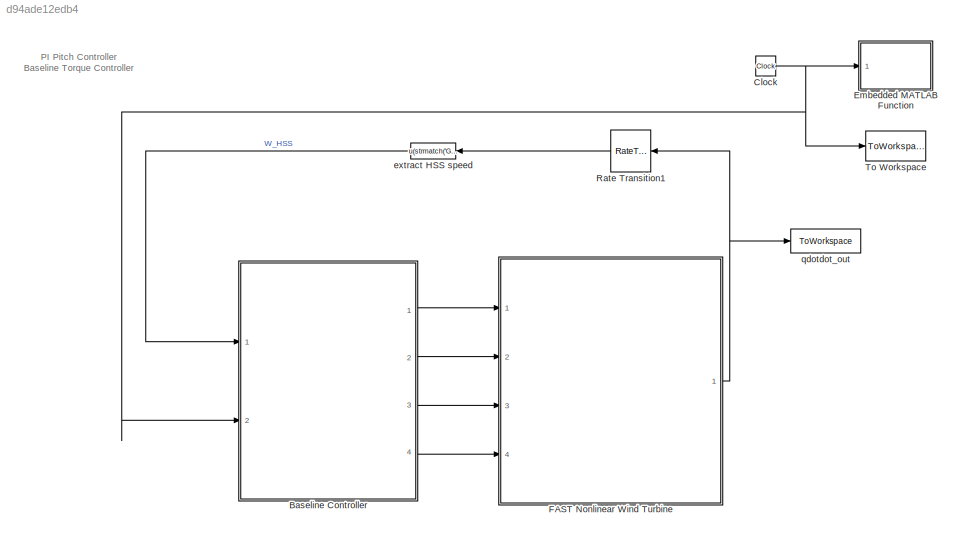
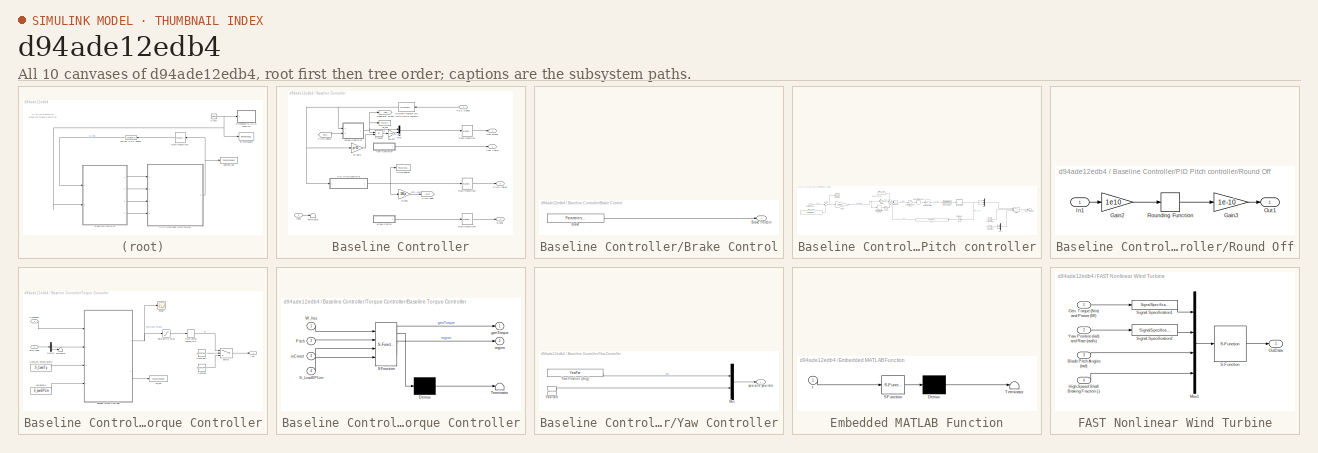
[diagram: thumbnail index - all 10 canvases of the model, root first then tree order]
MODEL slx_d94ade12edb4
KIND model
CONFIG AbsTol = auto
CONFIG EnableMultiTasking = off
CONFIG FixedStep = auto
CONFIG MaxStep = auto
CONFIG MinStep = auto
CONFIG RelTol = 1e-3
CONFIG SampleTimeConstraint = Unconstrained
CONFIG Solver = FixedStepAuto
CONFIG SolverName = FixedStepAuto
CONFIG StartTime = 0.0
CONFIG StopTime = FA.TMax
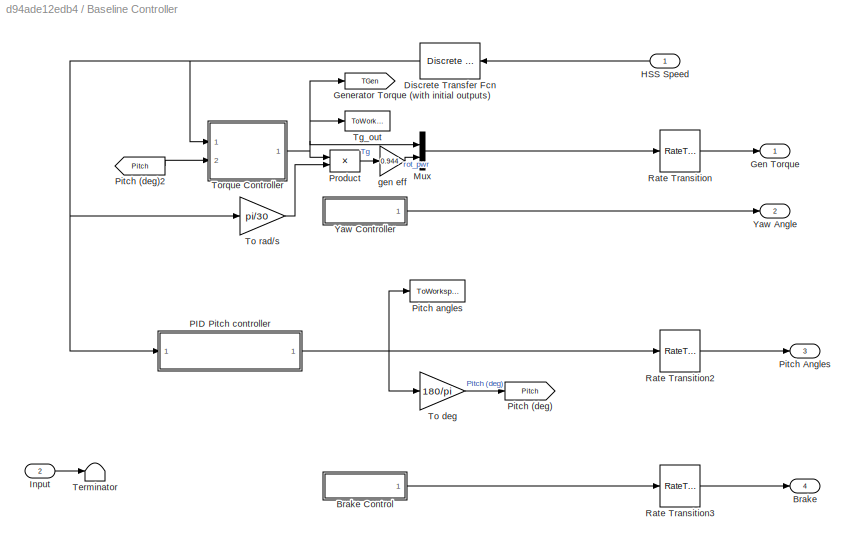
BLOCK [SubSystem] Baseline Controller
  Ports = [2, 4]
  RequestExecContextInheritance = off
BLOCK [Outport] Baseline Controller/Brake
  IconDisplay = Port number
  Port = 4
BLOCK [SubSystem] Baseline Controller/Brake Control
  Ports = [0, 1]
  RequestExecContextInheritance = off
BLOCK [Constant] Baseline Controller/Brake Control/Brake
  Value = Parameters.Turbine.Brake*100
BLOCK [Outport] Baseline Controller/Brake Control/Brake Percent
  IconDisplay = Port number
BLOCK [Reference] Baseline Controller/Discrete Transfer Fcn (with initial outputs)  REF=simulink_extras/Additional
Discrete/Discrete
Transfer Fcn
(with initial outputs)
  Ports = [1, 1]
  SourceBlock = simulink_extras/Additional\nDiscrete/Discrete\nTransfer Fcn\n(with initial outputs)
  SourceProductBaseCode = SL
  SourceProductName = Simulink
  SourceType = Discrete Transfer Function with Initial Outputs
BLOCK [Outport] Baseline Controller/Gen Torque
  IconDisplay = Port number
BLOCK [Goto] Baseline Controller/Generator Torque
  GotoTag = TGen
BLOCK [Inport] Baseline Controller/HSS Speed
  IconDisplay = Port number
BLOCK [Inport] Baseline Controller/Input
  IconDisplay = Port number
  Port = 2
BLOCK [Mux] Baseline Controller/Mux
  DisplayOption = bar
  Inputs = 2
  Ports = [2, 1]
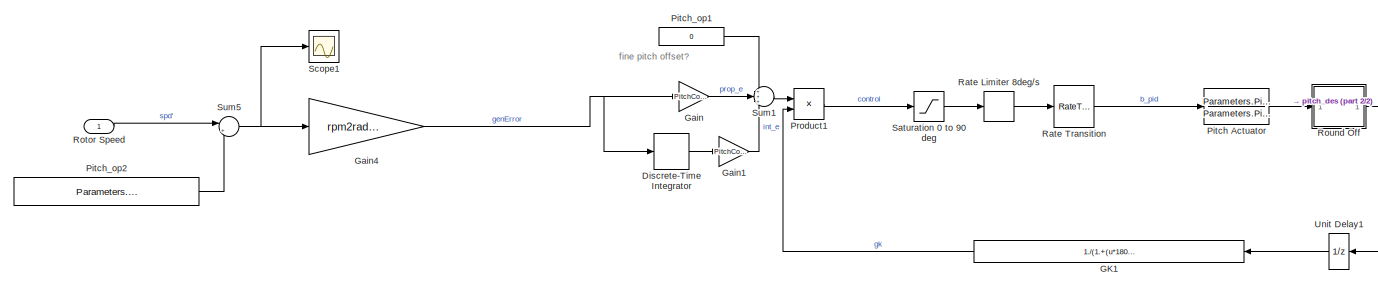
[diagram: Baseline Controller/PID Pitch controller - part 1/2, central region]
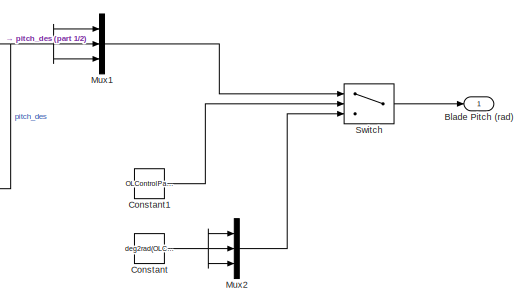
[diagram: Baseline Controller/PID Pitch controller - part 2/2, right side, full height]
BLOCK [SubSystem] Baseline Controller/PID Pitch controller
  MinAlgLoopOccurrences = on
  Ports = [1, 1]
  RequestExecContextInheritance = off
BLOCK [Outport] Baseline Controller/PID Pitch controller/Blade Pitch (rad)
  IconDisplay = Port number
BLOCK [Constant] Baseline Controller/PID Pitch controller/Constant
  Value = deg2rad(OLControlParams.OLBP)
BLOCK [Constant] Baseline Controller/PID Pitch controller/Constant1
  Value = OLControlParams.Disable
BLOCK [DiscreteIntegrator] Baseline Controller/PID Pitch controller/Discrete-Time Integrator
  ICPrevOutput = DiscIntNeverNeededParam
  ICPrevScaledInput = DiscIntNeverNeededParam
  InitialCondition = deg2rad(Parameters.Turbine.fine_pitch)/(PitchControlParams.Ki_0)/(1./(1.+deg2rad(Parameters.Turbine.fine_pitch)/PitchControlParams.theta_k))
  IntegratorMethod = Integration: Backward Euler
  LimitOutput = on
  LowerSaturationLimit = deg2rad(Parameters.Turbine.fine_pitch)/(PitchControlParams.Ki_0)/(1./(1.+deg2rad(Parameters.Turbine.fine_pitch)/PitchControlParams.theta_k))
  Ports = [1, 1]
  SampleTime = Control.DT
  UpperSaturationLimit = 5*1.570796/(PitchControlParams.Ki_0)/(1./(1.+1.570796/PitchControlParams.theta_k))
  gainval = 1
BLOCK [Fcn] Baseline Controller/PID Pitch controller/GK1
  Expr = 1./(1.+(u*180/pi-Parameters.Turbine.fine_pitch)/Parameters.Turbine.theta_k)
BLOCK [Gain] Baseline Controller/PID Pitch controller/Gain
  Gain = PitchControlParams.Kp_0
  OutDataTypeStr = Inherit: Inherit via internal rule
  ParamDataTypeStr = Inherit: Inherit via internal rule
  SaturateOnIntegerOverflow = off
BLOCK [Gain] Baseline Controller/PID Pitch controller/Gain1
  Gain = PitchControlParams.Ki_0
  OutDataTypeStr = Inherit: Inherit via internal rule
  ParamDataTypeStr = Inherit: Inherit via internal rule
  SaturateOnIntegerOverflow = off
BLOCK [Gain] Baseline Controller/PID Pitch controller/Gain4
  Gain = rpm2radps(1)
  OutDataTypeStr = Inherit: Inherit via internal rule
  ParamDataTypeStr = Inherit: Inherit via internal rule
  SaturateOnIntegerOverflow = off
BLOCK [Mux] Baseline Controller/PID Pitch controller/Mux1
  DisplayOption = bar
  Inputs = 3
  Ports = [3, 1]
BLOCK [Mux] Baseline Controller/PID Pitch controller/Mux2
  DisplayOption = bar
  Inputs = 3
  Ports = [3, 1]
BLOCK [TransferFcn] Baseline Controller/PID Pitch controller/Pitch Actuator
  Denominator = Parameters.PitchActuator.TF_den
  Numerator = Parameters.PitchActuator.TF_num
BLOCK [Constant] Baseline Controller/PID Pitch controller/Pitch_op1
  SampleTime = Control.DT
  Value = 0
BLOCK [Constant] Baseline Controller/PID Pitch controller/Pitch_op2
  SampleTime = Control.DT
  Value = Parameters.Turbine.wg_rated
BLOCK [Product] Baseline Controller/PID Pitch controller/Product1
  InputSameDT = off
  OutDataTypeStr = Inherit: Inherit via internal rule
  Ports = [2, 1]
  SaturateOnIntegerOverflow = off
BLOCK [RateLimiter] Baseline Controller/PID Pitch controller/Rate Limiter 8deg//s
  FallingSlewLimit = -18*pi/180
  InitialCondition = deg2rad(0)
  RisingSlewLimit = 18*pi/180
  SampleTimeMode = inherited
BLOCK [RateTransition] Baseline Controller/PID Pitch controller/Rate Transition
  Commented = through
BLOCK [Inport] Baseline Controller/PID Pitch controller/Rotor Speed
  IconDisplay = Port number
BLOCK [SubSystem] Baseline Controller/PID Pitch controller/Round Off
  Ports = [1, 1]
  RequestExecContextInheritance = off
BLOCK [Gain] Baseline Controller/PID Pitch controller/Round Off/Gain2
  Gain = 1e10
  OutDataTypeStr = Inherit: Inherit via internal rule
  ParamDataTypeStr = Inherit: Inherit via internal rule
  SaturateOnIntegerOverflow = off
BLOCK [Gain] Baseline Controller/PID Pitch controller/Round Off/Gain3
  Gain = 1e-10
  OutDataTypeStr = Inherit: Inherit via internal rule
  ParamDataTypeStr = Inherit: Inherit via internal rule
  SaturateOnIntegerOverflow = off
BLOCK [Inport] Baseline Controller/PID Pitch controller/Round Off/In1
  IconDisplay = Port number
BLOCK [Outport] Baseline Controller/PID Pitch controller/Round Off/Out1
  IconDisplay = Port number
BLOCK [Rounding] Baseline Controller/PID Pitch controller/Round Off/Rounding Function
  Operator = round
BLOCK [Saturate] Baseline Controller/PID Pitch controller/Saturation 0 to 90 deg
  InputPortMap = u0
  LowerLimit = deg2rad(Parameters.Turbine.fine_pitch)
  Ports = [1, 1]
  UpperLimit = 90*pi/180
BLOCK [Scope] Baseline Controller/PID Pitch controller/Scope1
  Floating = off
  NumInputPorts = 1
  Ports = [1]
  ScopeSpecificationString = Simulink.scopes.TimeScopeBlockCfg('CurrentConfiguration', extmgr.ConfigurationSet(extmgr.Configuration('Core','General UI',true),extmgr.Configuration('Core','Source UI',true),extmgr.Configuration('Sources','WiredSimulink',true,'DataLoggingVariableName','ScopeData2'),extmgr.Configuration('Visuals','Time Domain',true,'SerializedDisplays',{struct('MinYLimReal','-848.99604','MaxYLimReal','-522.22659',...<+1418ch>
BLOCK [Sum] Baseline Controller/PID Pitch controller/Sum1
  IconShape = round
  InputSameDT = off
  Inputs = +++
  OutDataTypeStr = Inherit: Inherit via internal rule
  Ports = [3, 1]
  SaturateOnIntegerOverflow = off
BLOCK [Sum] Baseline Controller/PID Pitch controller/Sum5
  IconShape = round
  Inputs = |+-
  Ports = [2, 1]
BLOCK [Switch] Baseline Controller/PID Pitch controller/Switch
  Criteria = u2 > Threshold
  InputSameDT = off
  SaturateOnIntegerOverflow = off
  Threshold = 0.5
BLOCK [UnitDelay] Baseline Controller/PID Pitch controller/Unit Delay1
  InitialCondition = Parameters.Turbine.IC.Wg
  SampleTime = Control.DT
BLOCK [Goto] Baseline Controller/Pitch (deg)
  GotoTag = Pitch
BLOCK [From] Baseline Controller/Pitch (deg)2
  CloseFcn = tagdialog Close
  GotoTag = Pitch
BLOCK [Outport] Baseline Controller/Pitch Angles
  IconDisplay = Port number
  Port = 3
BLOCK [ToWorkspace] Baseline Controller/Pitch angles 
  MaxDataPoints = inf
  Ports = [1]
  SampleTime = -1
  VariableName = theta_out
BLOCK [Product] Baseline Controller/Product
  InputSameDT = off
  OutDataTypeStr = Inherit: Inherit via internal rule
  Ports = [2, 1]
  SaturateOnIntegerOverflow = off
BLOCK [RateTransition] Baseline Controller/Rate Transition
  InitialCondition = [0,0]
BLOCK [RateTransition] Baseline Controller/Rate Transition2
  InitialCondition = deg2rad(0)
BLOCK [RateTransition] Baseline Controller/Rate Transition3
BLOCK [Terminator] Baseline Controller/Terminator
BLOCK [ToWorkspace] Baseline Controller/Tg_out
  MaxDataPoints = Inf
  Ports = [1]
  SampleTime = -1
  VariableName = Out_Tg
BLOCK [Gain] Baseline Controller/To deg
  Gain = 180/pi
  OutDataTypeStr = Inherit: Inherit via internal rule
  ParamDataTypeStr = Inherit: Inherit via internal rule
  SaturateOnIntegerOverflow = off
BLOCK [Gain] Baseline Controller/To rad//s
  Gain = pi/30
  OutDataTypeStr = Inherit: Inherit via internal rule
  ParamDataTypeStr = Inherit: Inherit via internal rule
  SaturateOnIntegerOverflow = off
BLOCK [SubSystem] Baseline Controller/Torque Controller
  Ports = [2, 1]
  RequestExecContextInheritance = off
BLOCK [SubSystem] Baseline Controller/Torque Controller/Baseline Torque Controller
  ErrorFcn = Stateflow.Translate.translate
  PermitHierarchicalResolution = ExplicitOnly
  Ports = [4, 2]
  RequestExecContextInheritance = off
  SFBlockType = MATLAB Function
  TreatAsAtomicUnit = on
BLOCK [Demux] Baseline Controller/Torque Controller/Baseline Torque Controller/ Demux 
  Outputs = 1
  Ports = [1, 1]
BLOCK [S-Function] Baseline Controller/Torque Controller/Baseline Torque Controller/ SFunction 
  EnableBusSupport = on
  FunctionName = sf_sfun
  Parameters = TorqueControlParams
  PortCounts = [4 3]
  Ports = [4, 3]
  SFcnIsStateOwnerBlock = off
  SFunctionDeploymentMode = off
  Tag = Stateflow S-Function BL_CollectivePitch_SUMRD 3
BLOCK [Terminator] Baseline Controller/Torque Controller/Baseline Torque Controller/ Terminator 
BLOCK [Inport] Baseline Controller/Torque Controller/Baseline Torque Controller/Pitch
  IconDisplay = Port number
  Port = 2
BLOCK [Inport] Baseline Controller/Torque Controller/Baseline Torque Controller/S_LowBPLim
  IconDisplay = Port number
  Port = 4
BLOCK [Inport] Baseline Controller/Torque Controller/Baseline Torque Controller/W_hss
  IconDisplay = Port number
BLOCK [Outport] Baseline Controller/Torque Controller/Baseline Torque Controller/genTorque
  IconDisplay = Port number
BLOCK [Inport] Baseline Controller/Torque Controller/Baseline Torque Controller/isConst
  IconDisplay = Port number
  Port = 3
BLOCK [Outport] Baseline Controller/Torque Controller/Baseline Torque Controller/region
  IconDisplay = Port number
  Port = 2
BLOCK [Constant] Baseline Controller/Torque Controller/Constant
  Value = OLControlParams.OLTQ
BLOCK [Constant] Baseline Controller/Torque Controller/Constant Torque Switch
  SampleTime = Control.DT
  Value = S_ConstTq
BLOCK [Constant] Baseline Controller/Torque Controller/Constant1
  Value = OLControlParams.Disable
BLOCK [Demux] Baseline Controller/Torque Controller/Demux
  DisplayOption = bar
  Outputs = [1, 2]
  Ports = [1, 2]
BLOCK [Inport] Baseline Controller/Torque Controller/HSSspeed
  IconDisplay = Port number
BLOCK [Constant] Baseline Controller/Torque Controller/LowBPLim1
  SampleTime = Control.DT
  Value = S_LowBPLim
BLOCK [Inport] Baseline Controller/Torque Controller/Pitch (deg)
  IconDisplay = Port number
  Port = 2
BLOCK [RateLimiter] Baseline Controller/Torque Controller/Rate Limiter 15000Nm//s
  FallingSlewLimit = -15000
  RisingSlewLimit = 15000
  SampleTimeMode = inherited
BLOCK [Saturate] Baseline Controller/Torque Controller/Saturate to Tg_op
  InputPortMap = u0
  LowerLimit = 0
  Ports = [1, 1]
  UpperLimit = TorqueControlParams.T_rated
BLOCK [Scope] Baseline Controller/Torque Controller/Scope
  Floating = off
  NumInputPorts = 1
  Ports = [1]
  ScopeSpecificationString = C++SS(StrPVP('SaveName','ScopeData1'),StrPVP('LimitDataPoints','on'),StrPVP('DataFormat','Array'),StrPVP('Decimation','1'),StrPVP('BlockParamSampleInput','off'))
BLOCK [Switch] Baseline Controller/Torque Controller/Switch
  InputSameDT = off
  SaturateOnIntegerOverflow = off
  Threshold = 0.5
BLOCK [Terminator] Baseline Controller/Torque Controller/Terminator
BLOCK [Outport] Baseline Controller/Torque Controller/Tg
  IconDisplay = Port number
BLOCK [ToWorkspace] Baseline Controller/Torque Controller/Tg_out
  MaxDataPoints = Inf
  Ports = [1]
  SampleTime = -1
  VariableName = Out_Region1
BLOCK [Outport] Baseline Controller/Yaw Angle
  IconDisplay = Port number
  Port = 2
BLOCK [SubSystem] Baseline Controller/Yaw Controller
  Ports = [0, 1]
  RequestExecContextInheritance = off
BLOCK [Mux] Baseline Controller/Yaw Controller/Mux
  DisplayOption = bar
  Inputs = 2
  Ports = [2, 1]
BLOCK [Constant] Baseline Controller/Yaw Controller/Yaw Position (deg)
  SampleTime = -1
  Value = YawPzn
BLOCK [Constant] Baseline Controller/Yaw Controller/Yaw rate
  SampleTime = -1
  Value = YawRate
BLOCK [Outport] Baseline Controller/Yaw Controller/yaw and yaw rate
  IconDisplay = Port number
BLOCK [Gain] Baseline Controller/gen eff
  Gain = 0.944
  OutDataTypeStr = Inherit: Inherit via internal rule
  ParamDataTypeStr = Inherit: Inherit via internal rule
  SaturateOnIntegerOverflow = off
BLOCK [Clock] Clock
BLOCK [SubSystem] Embedded MATLAB Function
  ErrorFcn = Stateflow.Translate.translate
  PermitHierarchicalResolution = ExplicitOnly
  Ports = [1]
  RequestExecContextInheritance = off
  SFBlockType = MATLAB Function
  TreatAsAtomicUnit = on
BLOCK [Demux] Embedded MATLAB Function/ Demux 
  Outputs = 1
  Ports = [1, 1]
BLOCK [S-Function] Embedded MATLAB Function/ SFunction 
  EnableBusSupport = off
  FunctionName = sf_sfun
  PortCounts = [1 1]
  Ports = [1, 1]
  SFcnIsStateOwnerBlock = off
  SFunctionDeploymentMode = off
  Tag = Stateflow S-Function BL_CollectivePitch_SUMRD 2
BLOCK [Terminator] Embedded MATLAB Function/ Terminator 
BLOCK [Inport] Embedded MATLAB Function/t
  IconDisplay = Port number
BLOCK [SubSystem] FAST Nonlinear Wind Turbine
  Ports = [4, 1]
  RequestExecContextInheritance = off
BLOCK [Inport] FAST Nonlinear Wind Turbine/Blade Pitch Angles (rad)
  IconDisplay = Port number
  Port = 3
BLOCK [Inport] FAST Nonlinear Wind Turbine/Gen. Torque (Nm) and Power (W)
  IconDisplay = Port number
BLOCK [Inport] FAST Nonlinear Wind Turbine/High-Speed Shaft Braking Fraction (-)
  IconDisplay = Port number
  Port = 4
BLOCK [Mux] FAST Nonlinear Wind Turbine/Mux1
  DisplayOption = bar
  Ports = [4, 1]
BLOCK [Outport] FAST Nonlinear Wind Turbine/OutData
  IconDisplay = Port number
BLOCK [S-Function] FAST Nonlinear Wind Turbine/S-Function
  EnableBusSupport = off
  FunctionName = FAST_SFunc
  Parameters = FAST_InputFileName, FA.TMax, 0
  Ports = [1, 1]
  SFcnIsStateOwnerBlock = off
  SFunctionDeploymentMode = off
BLOCK [SignalSpecification] FAST Nonlinear Wind Turbine/Signal Specification1
  Dimensions = 2
  OutDataTypeStr = double
  SignalType = real
BLOCK [SignalSpecification] FAST Nonlinear Wind Turbine/Signal Specification2
  Dimensions = 2
  OutDataTypeStr = double
  SignalType = real
BLOCK [Inport] FAST Nonlinear Wind Turbine/Yaw Position (rad) and Rate (rad//s)
  IconDisplay = Port number
  Port = 2
BLOCK [RateTransition] Rate Transition1
BLOCK [ToWorkspace] To Workspace
  MaxDataPoints = inf
  Ports = [1]
  SampleTime = -1
  VariableName = Time
BLOCK [Fcn] extract HSS speed
  Expr = u(strmatch('GenSpeed',OutList))
BLOCK [ToWorkspace] qdotdot_out
  MaxDataPoints = inf
  Ports = [1]
  SampleTime = -1
  SaveFormat = Structure With Time
  VariableName = OutData
ANNOTATION (root): PI Pitch Controller Baseline Torque Controller
ANNOTATION Baseline Controller/PID Pitch controller: fine pitch offset?
LINE Baseline Controller/Brake Control/Brake:1 -> Baseline Controller/Brake Control/Brake Percent:1
LINE Baseline Controller/Brake Control:1 -> Baseline Controller/Rate Transition3:1
NET Baseline Controller/Discrete Transfer Fcn (with initial outputs):1 -> Baseline Controller/PID Pitch controller:1, Baseline Controller/To rad//s:1, Baseline Controller/Torque Controller:1
LINE Baseline Controller/HSS Speed:1 -> Baseline Controller/Discrete Transfer Fcn (with initial outputs):1
LINE Baseline Controller/Input:1 -> Baseline Controller/Terminator:1
LINE Baseline Controller/Mux:1 -> Baseline Controller/Rate Transition:1
LINE Baseline Controller/PID Pitch controller/Constant1:1 -> Baseline Controller/PID Pitch controller/Switch:2
NET Baseline Controller/PID Pitch controller/Constant:1 -> Baseline Controller/PID Pitch controller/Mux2:1, Baseline Controller/PID Pitch controller/Mux2:2, Baseline Controller/PID Pitch controller/Mux2:3
LINE Baseline Controller/PID Pitch controller/Discrete-Time Integrator:1 -> Baseline Controller/PID Pitch controller/Gain1:1
LINE Baseline Controller/PID Pitch controller/GK1:1 -> Baseline Controller/PID Pitch controller/Product1:2
LINE Baseline Controller/PID Pitch controller/Gain1:1 -> Baseline Controller/PID Pitch controller/Sum1:3
NET Baseline Controller/PID Pitch controller/Gain4:1 -> Baseline Controller/PID Pitch controller/Discrete-Time Integrator:1, Baseline Controller/PID Pitch controller/Gain:1
LINE Baseline Controller/PID Pitch controller/Gain:1 -> Baseline Controller/PID Pitch controller/Sum1:2
LINE Baseline Controller/PID Pitch controller/Mux1:1 -> Baseline Controller/PID Pitch controller/Switch:1
LINE Baseline Controller/PID Pitch controller/Mux2:1 -> Baseline Controller/PID Pitch controller/Switch:3
LINE Baseline Controller/PID Pitch controller/Pitch Actuator:1 -> Baseline Controller/PID Pitch controller/Round Off:1
LINE Baseline Controller/PID Pitch controller/Pitch_op1:1 -> Baseline Controller/PID Pitch controller/Sum1:1
LINE Baseline Controller/PID Pitch controller/Pitch_op2:1 -> Baseline Controller/PID Pitch controller/Sum5:2
LINE Baseline Controller/PID Pitch controller/Product1:1 -> Baseline Controller/PID Pitch controller/Saturation 0 to 90 deg:1
LINE Baseline Controller/PID Pitch controller/Rate Limiter 8deg//s:1 -> Baseline Controller/PID Pitch controller/Rate Transition:1
LINE Baseline Controller/PID Pitch controller/Rate Transition:1 -> Baseline Controller/PID Pitch controller/Pitch Actuator:1
LINE Baseline Controller/PID Pitch controller/Rotor Speed:1 -> Baseline Controller/PID Pitch controller/Sum5:1
LINE Baseline Controller/PID Pitch controller/Round Off/Gain2:1 -> Baseline Controller/PID Pitch controller/Round Off/Rounding Function:1
LINE Baseline Controller/PID Pitch controller/Round Off/Gain3:1 -> Baseline Controller/PID Pitch controller/Round Off/Out1:1
LINE Baseline Controller/PID Pitch controller/Round Off/In1:1 -> Baseline Controller/PID Pitch controller/Round Off/Gain2:1
LINE Baseline Controller/PID Pitch controller/Round Off/Rounding Function:1 -> Baseline Controller/PID Pitch controller/Round Off/Gain3:1
NET Baseline Controller/PID Pitch controller/Round Off:1 -> Baseline Controller/PID Pitch controller/Mux1:1, Baseline Controller/PID Pitch controller/Mux1:2, Baseline Controller/PID Pitch controller/Mux1:3, Baseline Controller/PID Pitch controller/Unit Delay1:1
LINE Baseline Controller/PID Pitch controller/Saturation 0 to 90 deg:1 -> Baseline Controller/PID Pitch controller/Rate Limiter 8deg//s:1
LINE Baseline Controller/PID Pitch controller/Sum1:1 -> Baseline Controller/PID Pitch controller/Product1:1
NET Baseline Controller/PID Pitch controller/Sum5:1 -> Baseline Controller/PID Pitch controller/Gain4:1, Baseline Controller/PID Pitch controller/Scope1:1
LINE Baseline Controller/PID Pitch controller/Switch:1 -> Baseline Controller/PID Pitch controller/Blade Pitch (rad):1
LINE Baseline Controller/PID Pitch controller/Unit Delay1:1 -> Baseline Controller/PID Pitch controller/GK1:1
NET Baseline Controller/PID Pitch controller:1 -> Baseline Controller/Pitch angles :1, Baseline Controller/Rate Transition2:1, Baseline Controller/To deg:1
LINE Baseline Controller/Pitch (deg)2:1 -> Baseline Controller/Torque Controller:2
LINE Baseline Controller/Product:1 -> Baseline Controller/gen eff:1
LINE Baseline Controller/Rate Transition2:1 -> Baseline Controller/Pitch Angles:1
LINE Baseline Controller/Rate Transition3:1 -> Baseline Controller/Brake:1
LINE Baseline Controller/Rate Transition:1 -> Baseline Controller/Gen Torque:1
LINE Baseline Controller/To deg:1 -> Baseline Controller/Pitch (deg):1
LINE Baseline Controller/To rad//s:1 -> Baseline Controller/Product:2
NET Baseline Controller/Torque Controller/Baseline Torque Controller:1 -> Baseline Controller/Torque Controller/Saturate to Tg_op:1, Baseline Controller/Torque Controller/Scope:1
LINE Baseline Controller/Torque Controller/Baseline Torque Controller:2 -> Baseline Controller/Torque Controller/Tg_out:1
LINE Baseline Controller/Torque Controller/Constant Torque Switch:1 -> Baseline Controller/Torque Controller/Baseline Torque Controller:3
LINE Baseline Controller/Torque Controller/Constant1:1 -> Baseline Controller/Torque Controller/Switch:2
LINE Baseline Controller/Torque Controller/Constant:1 -> Baseline Controller/Torque Controller/Switch:3
LINE Baseline Controller/Torque Controller/Demux:1 -> Baseline Controller/Torque Controller/Baseline Torque Controller:2
LINE Baseline Controller/Torque Controller/Demux:2 -> Baseline Controller/Torque Controller/Terminator:1
LINE Baseline Controller/Torque Controller/HSSspeed:1 -> Baseline Controller/Torque Controller/Baseline Torque Controller:1
LINE Baseline Controller/Torque Controller/LowBPLim1:1 -> Baseline Controller/Torque Controller/Baseline Torque Controller:4
LINE Baseline Controller/Torque Controller/Pitch (deg):1 -> Baseline Controller/Torque Controller/Demux:1
LINE Baseline Controller/Torque Controller/Rate Limiter 15000Nm//s:1 -> Baseline Controller/Torque Controller/Switch:1
LINE Baseline Controller/Torque Controller/Saturate to Tg_op:1 -> Baseline Controller/Torque Controller/Rate Limiter 15000Nm//s:1
LINE Baseline Controller/Torque Controller/Switch:1 -> Baseline Controller/Torque Controller/Tg:1
NET Baseline Controller/Torque Controller:1 -> Baseline Controller/Generator Torque:1, Baseline Controller/Mux:1, Baseline Controller/Product:1, Baseline Controller/Tg_out:1
LINE Baseline Controller/Yaw Controller/Mux:1 -> Baseline Controller/Yaw Controller/yaw and yaw rate:1
LINE Baseline Controller/Yaw Controller/Yaw Position (deg):1 -> Baseline Controller/Yaw Controller/Mux:1
LINE Baseline Controller/Yaw Controller/Yaw rate:1 -> Baseline Controller/Yaw Controller/Mux:2
LINE Baseline Controller/Yaw Controller:1 -> Baseline Controller/Yaw Angle:1
LINE Baseline Controller/gen eff:1 -> Baseline Controller/Mux:2
LINE Baseline Controller:1 -> FAST Nonlinear Wind Turbine:1
LINE Baseline Controller:2 -> FAST Nonlinear Wind Turbine:2
LINE Baseline Controller:3 -> FAST Nonlinear Wind Turbine:3
LINE Baseline Controller:4 -> FAST Nonlinear Wind Turbine:4
NET Clock:1 -> Baseline Controller:2, Embedded MATLAB Function:1, To Workspace:1
LINE FAST Nonlinear Wind Turbine/Blade Pitch Angles (rad):1 -> FAST Nonlinear Wind Turbine/Mux1:3
LINE FAST Nonlinear Wind Turbine/Gen. Torque (Nm) and Power (W):1 -> FAST Nonlinear Wind Turbine/Signal Specification1:1
LINE FAST Nonlinear Wind Turbine/High-Speed Shaft Braking Fraction (-):1 -> FAST Nonlinear Wind Turbine/Mux1:4
LINE FAST Nonlinear Wind Turbine/Mux1:1 -> FAST Nonlinear Wind Turbine/S-Function:1
LINE FAST Nonlinear Wind Turbine/S-Function:1 -> FAST Nonlinear Wind Turbine/OutData:1
LINE FAST Nonlinear Wind Turbine/Signal Specification1:1 -> FAST Nonlinear Wind Turbine/Mux1:1
LINE FAST Nonlinear Wind Turbine/Signal Specification2:1 -> FAST Nonlinear Wind Turbine/Mux1:2
LINE FAST Nonlinear Wind Turbine/Yaw Position (rad) and Rate (rad//s):1 -> FAST Nonlinear Wind Turbine/Signal Specification2:1
NET FAST Nonlinear Wind Turbine:1 -> Rate Transition1:1, qdotdot_out:1
LINE Rate Transition1:1 -> extract HSS speed:1
LINE extract HSS speed:1 -> Baseline Controller:1
note: NET lines group one-source signal fan-out (src -> all destinations, sorted); 1:1 wires keep LINE
CHART Embedded
MATLAB Function states=1 transitions=1
  STATE_LABEL 'eML_blk_kernel()'
  STATE_LABEL 'SCRIPT:\nfunction TellTime(t)\n\nif t==0\n    Tsim=t\nelseif rem(t,50)==0\n    Tsim=t\nend'
CHART Baseline Controller/Torque Controller/Baseline Torque Controller states=1 transitions=1
  STATE_LABEL 'eML_blk_kernel()'
  STATE_LABEL 'SCRIPT:\nfunction [genTorque, region] = regionSelectTq_Flex( W_hss, Pitch, isConst, S_LowBPLim, TorqueControlParams)\n% This block supports an embeddable subset of the MATLAB language.\n% See the help menu for details.\n\n\n%% Assign Constants\n\nwg_rated    = TorqueControlParams.wg_rated;\nT_rated     = TorqueControlParams.T_rated;\nw2_high     = TorqueControlParams.w2_high;\nw1_high     = TorqueControlPara...<+1042ch>'
